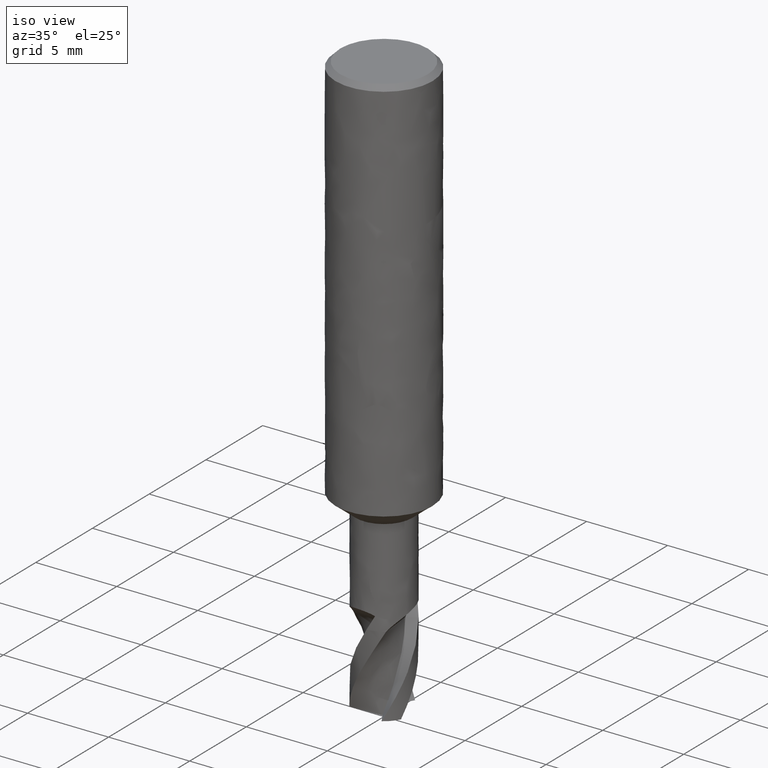
[diagram: clean part render]
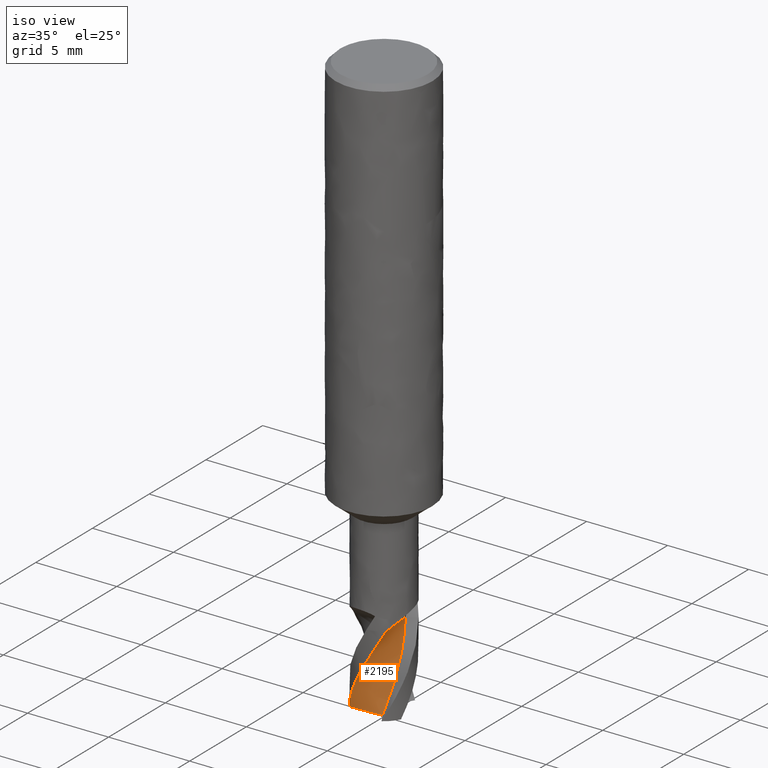
[diagram: same view with one face highlighted and labeled with its STEP entity id]
A machine part, iso view. The second image highlights one B-rep face of the part: STEP entity #2195.
In plain terms, the highlighted face is a freeform B-spline surface patch.
Its self-contained STEP definition (entity closure, byte-faithful):
#1143 = VERTEX_POINT('', #1144);
#1144 = CARTESIAN_POINT('', (1.09454893589704, -1.3654532679395, -31.));
#1151 = EDGE_CURVE('', #1143, #1152, #1154, .T.);
#1152 = VERTEX_POINT('', #1153);
#1153 = CARTESIAN_POINT('', (0.890026275204839, 0.612047449909204, -31.));
#1154 = LINE('', #1155, #1156);
#1155 = CARTESIAN_POINT('', (1.09454893589705, -1.3654532679395, -31.));
#1156 = VECTOR('', #1157, 1.98804894502846);
#1157 = DIRECTION('', (-0.204522660692207, 1.9775007178487, -3.5527136788005E-15));
#1307 = VERTEX_POINT('', #1308);
#1308 = CARTESIAN_POINT('', (-1.44307479140081, -0.989967245126578, -36.));
#1315 = EDGE_CURVE('', #1143, #1307, #1316, .T.);
#1316 = B_SPLINE_CURVE_WITH_KNOTS('', 3, (#1317, #1318, #1319, #1320, #1321, #1322, #1323, #1324, #1325, #1326, #1327, #1328, #1329, #1330, #1331, #1332, #1333, #1334, #1335, #1336, #1337, #1338, #1339, #1340, #1341, #1342, #1343, #1344, #1345, #1346, #1347, #1348, #1349, #1350, #1351, #1352, #1353, #1354, #1355, #1356, #1357, #1358, #1359, #1360, #1361, #1362, #1363, #1364, #1365, #1366, #1367, #1368, #1369, #1370, #1371, #1372, #1373, #1374, #1375, #1376, #1377, #1378, #1379, #1380, #1381, #1382, #1383, #1384, #1385, #1386, #1387, #1388, #1389, #1390, #1391, #1392, #1393, #1394, #1395, #1396, #1397, #1398, #1399, #1400, #1401, #1402, #1403, #1404, #1405, #1406, #1407), .UNSPECIFIED., .F., .U., (4, 3, 3, 3, 3, 3, 3, 3, 3, 3, 3, 3, 3, 3, 3, 3, 3, 3, 3, 3, 3, 3, 3, 3, 3, 3, 3, 3, 3, 3, 4), (2.58669447304961, 2.60025520898882, 2.65863125368822, 2.71700368674347, 2.7753718059981, 2.83373747663387, 2.89210495877536, 2.97967060598826, 3.01860026813964, 3.15000640398405, 3.28133752872721, 3.36888335223861, 3.45642626909757, 3.58773194731643, 3.71904333403454, 3.80658979744614, 4.00345205164809, 4.13473040835345, 4.26601090045895, 4.56108827645327, 4.85607721165188, 4.91443848247962, 4.95336126665688, 5.39805475087892, 5.84247587833638, 6.28664720260929, 6.73058148883443, 7.17429020582691, 7.61778243309247, 8.06106526066834, 8.35734910080718), .UNSPECIFIED.);
#1317 = CARTESIAN_POINT('', (1.09454893589704, -1.3654532679395, -31.));
#1318 = CARTESIAN_POINT('', (1.09227065475572, -1.36727954076586, -31.0034506202769));
#1319 = CARTESIAN_POINT('', (1.09000031634178, -1.36909007757032, -31.0069158628127));
#1320 = CARTESIAN_POINT('', (1.08773937927493, -1.37088403695374, -31.0103947262767));
#1321 = CARTESIAN_POINT('', (1.07800653263088, -1.37860664534497, -31.0253704834911));
#1322 = CARTESIAN_POINT('', (1.06843803320348, -1.38602994332886, -31.0406133943669));
#1323 = CARTESIAN_POINT('', (1.05905783546013, -1.39316061570523, -31.0560990551556));
#1324 = CARTESIAN_POINT('', (1.04967821805647, -1.40029084691689, -31.0715837578681));
#1325 = CARTESIAN_POINT('', (1.04048280708181, -1.40713171247634, -31.0873184478951));
#1326 = CARTESIAN_POINT('', (1.03148257290153, -1.41369858944595, -31.103270417975));
#1327 = CARTESIAN_POINT('', (1.02248300385055, -1.42026498111459, -31.1192212091831));
#1328 = CARTESIAN_POINT('', (1.01367511896774, -1.42656009560266, -31.1353958175477));
#1329 = CARTESIAN_POINT('', (1.0050520931351, -1.43260960840183, -31.1517538218024));
#1330 = CARTESIAN_POINT('', (0.996429429049661, -1.43865886741605, -31.1681111398174));
#1331 = CARTESIAN_POINT('', (0.987988902585472, -1.444464586212, -31.1846571451722));
#1332 = CARTESIAN_POINT('', (0.979702311070539, -1.45006323368439, -31.2013452628234));
#1333 = CARTESIAN_POINT('', (0.971415462363189, -1.455662054923, -31.2180338984267));
#1334 = CARTESIAN_POINT('', (0.963280656413383, -1.46105520262264, -31.2348682994926));
#1335 = CARTESIAN_POINT('', (0.9552471399277, -1.46628881931903, -31.2517975962355));
#1336 = CARTESIAN_POINT('', (0.943194879925135, -1.47414053771545, -31.2771957249839));
#1337 = CARTESIAN_POINT('', (0.93137167932687, -1.48163448600611, -31.3028129347863));
#1338 = CARTESIAN_POINT('', (0.919522360363681, -1.48895219157342, -31.3284647616649));
#1339 = CARTESIAN_POINT('', (0.914254427119959, -1.49220547427646, -31.3398689708009));
#1340 = CARTESIAN_POINT('', (0.908976478966648, -1.49542638228476, -31.3512778346246));
#1341 = CARTESIAN_POINT('', (0.903676464566376, -1.49862231645896, -31.362683394985));
#1342 = CARTESIAN_POINT('', (0.885786393762492, -1.5094101151974, -31.4011825889487));
#1343 = CARTESIAN_POINT('', (0.867681542597677, -1.51989123397708, -31.4396698447961));
#1344 = CARTESIAN_POINT('', (0.849328457413137, -1.53007881216237, -31.4781145672657));
#1345 = CARTESIAN_POINT('', (0.830985848795174, -1.54026057493079, -31.5165373441774));
#1346 = CARTESIAN_POINT('', (0.812393695085638, -1.55015054322674, -31.5549206630058));
#1347 = CARTESIAN_POINT('', (0.79348173751915, -1.55977137177972, -31.5932117440632));
#1348 = CARTESIAN_POINT('', (0.780874955215193, -1.56618465241049, -31.6187367232398));
#1349 = CARTESIAN_POINT('', (0.768124601331259, -1.57247887529096, -31.6442215999037));
#1350 = CARTESIAN_POINT('', (0.755201794746008, -1.57866090380816, -31.6696453935595));
#1351 = CARTESIAN_POINT('', (0.742279417217288, -1.58484272707276, -31.6950683431072));
#1352 = CARTESIAN_POINT('', (0.72917728018786, -1.59091535508311, -31.7204273361164));
#1353 = CARTESIAN_POINT('', (0.715917142420076, -1.5968602459793, -31.7457325956919));
#1354 = CARTESIAN_POINT('', (0.696028253114738, -1.60577699172035, -31.78368797107));
#1355 = CARTESIAN_POINT('', (0.675782918950553, -1.61440576511425, -31.8215266406852));
#1356 = CARTESIAN_POINT('', (0.655288287024169, -1.62268211948272, -31.8593043962177));
#1357 = CARTESIAN_POINT('', (0.634792764096021, -1.63095883366475, -31.8970837941338));
#1358 = CARTESIAN_POINT('', (0.614045734050474, -1.63888363935455, -31.9348061108281));
#1359 = CARTESIAN_POINT('', (0.5931831468224, -1.64640024123111, -31.9725434466512));
#1360 = CARTESIAN_POINT('', (0.579273875318363, -1.6514116262116, -31.9977032623569));
#1361 = CARTESIAN_POINT('', (0.565318237534287, -1.6562403336597, -32.0228745617872));
#1362 = CARTESIAN_POINT('', (0.551345485162726, -1.66087873006751, -32.048070704537));
#1363 = CARTESIAN_POINT('', (0.519925512018423, -1.67130890779418, -32.1047282697387));
#1364 = CARTESIAN_POINT('', (0.488383517379589, -1.68079154918881, -32.1615001606941));
#1365 = CARTESIAN_POINT('', (0.456678100872778, -1.6893623389265, -32.2183102930807));
#1366 = CARTESIAN_POINT('', (0.435535221073163, -1.69507780325963, -32.2561943499009));
#1367 = CARTESIAN_POINT('', (0.414316227389619, -1.70038839336612, -32.2940992220657));
#1368 = CARTESIAN_POINT('', (0.392997533131255, -1.70530142172953, -32.3319973102409));
#1369 = CARTESIAN_POINT('', (0.371678492098725, -1.71021453000924, -32.369896014874));
#1370 = CARTESIAN_POINT('', (0.350250544356122, -1.71473158881787, -32.4077870333358));
#1371 = CARTESIAN_POINT('', (0.328734678366866, -1.71884656419328, -32.4456695681609));
#1372 = CARTESIAN_POINT('', (0.280373759112745, -1.72809573835909, -32.5308176262838));
#1373 = CARTESIAN_POINT('', (0.231557738500744, -1.73531060086532, -32.6159534564631));
#1374 = CARTESIAN_POINT('', (0.182613936133268, -1.74044596305946, -32.701115947038));
#1375 = CARTESIAN_POINT('', (0.133684803236172, -1.74557978607929, -32.7862529126521));
#1376 = CARTESIAN_POINT('', (0.0846035694430096, -1.7486427142325, -32.8714523607445));
#1377 = CARTESIAN_POINT('', (0.035531042561044, -1.74963926139493, -32.9566557239294));
#1378 = CARTESIAN_POINT('', (0.0258224240678401, -1.74983642051481, -32.9735125479012));
#1379 = CARTESIAN_POINT('', (0.0161135827121785, -1.74995274137009, -32.9903703826095));
#1380 = CARTESIAN_POINT('', (0.00640568315654513, -1.74998827631024, -33.0072287361076));
#1381 = CARTESIAN_POINT('', (-6.87899633730481E-5, -1.7500119755681, -33.0184720494468));
#1382 = CARTESIAN_POINT('', (-0.00654292301390642, -1.74999974207506, -33.0297156917467));
#1383 = CARTESIAN_POINT('', (-0.0130163136216235, -1.74995159235326, -33.0409595502624));
#1384 = CARTESIAN_POINT('', (-0.0869749135759842, -1.74940148094662, -33.1694208287957));
#1385 = CARTESIAN_POINT('', (-0.160871491072149, -1.74415220309357, -33.2979823323286));
#1386 = CARTESIAN_POINT('', (-0.234009407525652, -1.73428359768219, -33.4265355626118));
#1387 = CARTESIAN_POINT('', (-0.30710252996485, -1.7244210363923, -33.5550100592434));
#1388 = CARTESIAN_POINT('', (-0.37951460342265, -1.7099364786232, -33.6836008269014));
#1389 = CARTESIAN_POINT('', (-0.450614000862319, -1.69098995331931, -33.8121756137396));
#1390 = CARTESIAN_POINT('', (-0.521673434279572, -1.67205407760444, -33.9406781304059));
#1391 = CARTESIAN_POINT('', (-0.591487200503761, -1.64864349960494, -34.0692927251661));
#1392 = CARTESIAN_POINT('', (-0.659444514283103, -1.62099751159029, -34.1978944751808));
#1393 = CARTESIAN_POINT('', (-0.727365561720811, -1.59336627723188, -34.3264275951285));
#1394 = CARTESIAN_POINT('', (-0.793497906425212, -1.5614776088658, -34.4550723438835));
#1395 = CARTESIAN_POINT('', (-0.857271719576819, -1.52564255276744, -34.5837046346632));
#1396 = CARTESIAN_POINT('', (-0.921013128360163, -1.48982570496332, -34.7122715655731));
#1397 = CARTESIAN_POINT('', (-0.982459664387595, -1.45003217229429, -34.840949107706));
#1398 = CARTESIAN_POINT('', (-1.04108866570243, -1.40663939591714, -34.9696152519204));
#1399 = CARTESIAN_POINT('', (-1.09968906136675, -1.36326779129061, -35.0982186186924));
#1400 = CARTESIAN_POINT('', (-1.15553081628832, -1.316259164135, -35.2269321674161));
#1401 = CARTESIAN_POINT('', (-1.20814780160809, -1.26604853361534, -35.3556344356311));
#1402 = CARTESIAN_POINT('', (-1.26073994324465, -1.21586161059223, -35.4842759356671));
#1403 = CARTESIAN_POINT('', (-1.31016024133736, -1.16242800617026, -35.6130263438464));
#1404 = CARTESIAN_POINT('', (-1.35600088387717, -1.10623758882273, -35.7417686004128));
#1405 = CARTESIAN_POINT('', (-1.38664010732825, -1.0686807253598, -35.8278180654287));
#1406 = CARTESIAN_POINT('', (-1.41569821170134, -1.0298740725833, -35.9139084298977));
#1407 = CARTESIAN_POINT('', (-1.44307479140081, -0.989967245126578, -36.));
#2129 = EDGE_CURVE('', #2130, #1152, #2132, .T.);
#2130 = VERTEX_POINT('', #2131);
#2131 = CARTESIAN_POINT('', (0.544940590071605, -0.909239487355396, -36.));
#2132 = B_SPLINE_CURVE_WITH_KNOTS('', 3, (#2133, #2134, #2135, #2136, #2137, #2138, #2139, #2140, #2141, #2142, #2143, #2144, #2145, #2146, #2147, #2148, #2149, #2150), .UNSPECIFIED., .F., .U., (4, 1, 1, 1, 1, 1, 1, 1, 1, 1, 1, 1, 1, 1, 1, 4), (0.0499999999999987, 0.672222222222222, 1.00833333333333, 1.34444444444444, 1.68055555555556, 2.01666666666667, 2.35277777777778, 2.68888888888889, 3.025, 3.36111111111111, 3.69722222222222, 4.03333333333333, 4.36944444444444, 4.70555555555555, 5.04166666666667, 5.05), .UNSPECIFIED.);
#2133 = CARTESIAN_POINT('', (0.544940590071606, -0.909239487355396, -36.));
#2134 = CARTESIAN_POINT('', (0.605563211542006, -0.870686619623749, -35.7925925925926));
#2135 = CARTESIAN_POINT('', (0.692834054224696, -0.802317325295902, -35.4731481481481));
#2136 = CARTESIAN_POINT('', (0.794933710943784, -0.694080938953839, -35.0416666666667));
#2137 = CARTESIAN_POINT('', (0.865040741189985, -0.602018946536168, -34.7055555555556));
#2138 = CARTESIAN_POINT('', (0.925006362385828, -0.503203935060161, -34.3694444444444));
#2139 = CARTESIAN_POINT('', (0.974214248807352, -0.398695321785037, -34.0333333333333));
#2140 = CARTESIAN_POINT('', (1.01215396649719, -0.28960342888543, -33.6972222222222));
#2141 = CARTESIAN_POINT('', (1.03841221324569, -0.17708625172186, -33.3611111111111));
#2142 = CARTESIAN_POINT('', (1.05272586097909, -0.0623197163890223, -33.025));
#2143 = CARTESIAN_POINT('', (1.05479878751788, 0.0534368228904306, -32.6888888888889));
#2144 = CARTESIAN_POINT('', (1.04499757171392, 0.169130957763196, -32.3527777777778));
#2145 = CARTESIAN_POINT('', (1.02176368045749, 0.282880597901976, -32.0166666666667));
#2146 = CARTESIAN_POINT('', (0.99127645414979, 0.395890538748353, -31.6805555555556));
#2147 = CARTESIAN_POINT('', (0.931391913981727, 0.49788411220861, -31.3444444444444));
#2148 = CARTESIAN_POINT('', (0.889420815383369, 0.560811912665505, -31.1175925925926));
#2149 = CARTESIAN_POINT('', (0.889999669429893, 0.610826740383209, -31.0027777777778));
#2150 = CARTESIAN_POINT('', (0.890026275204839, 0.612047449909204, -31.));
#2195 = ADVANCED_FACE('', (#2196), #2207, .T.);
#2196 = FACE_OUTER_BOUND('', #2197, .T.);
#2197 = EDGE_LOOP('', (#2198, #2199, #2200, #2206));
#2198 = ORIENTED_EDGE('', *, *, #1151, .F.);
#2199 = ORIENTED_EDGE('', *, *, #1315, .T.);
#2200 = ORIENTED_EDGE('', *, *, #2201, .T.);
#2201 = EDGE_CURVE('', #1307, #2130, #2202, .T.);
#2202 = LINE('', #2203, #2204);
#2203 = CARTESIAN_POINT('', (-1.44307479140081, -0.989967245126578, -36.));
#2204 = VECTOR('', #2205, 1.989653770847);
#2205 = DIRECTION('', (1.98801538147241, 0.0807277577711816, 0.));
#2206 = ORIENTED_EDGE('', *, *, #2129, .T.);
#2207 = B_SPLINE_SURFACE_WITH_KNOTS('', 3, 1, ((#2208, #2209), (#2210, #2211), (#2212, #2213), (#2214, #2215), (#2216, #2217), (#2218, #2219), (#2220, #2221), (#2222, #2223), (#2224, #2225), (#2226, #2227), (#2228, #2229), (#2230, #2231), (#2232, #2233), (#2234, #2235), (#2236, #2237), (#2238, #2239), (#2240, #2241), (#2242, #2243)), .UNSPECIFIED., .F., .F., .U., (4, 1, 1, 1, 1, 1, 1, 1, 1, 1, 1, 1, 1, 1, 1, 4), (2, 2), (0.0500000000000003, 0.672222222222222, 1.00833333333333, 1.34444444444444, 1.68055555555556, 2.01666666666667, 2.35277777777778, 2.68888888888889, 3.025, 3.36111111111111, 3.69722222222222, 4.03333333333333, 4.36944444444444, 4.70555555555555, 5.04166666666667, 5.05000000000001), (0., 0.907194838237106), .UNSPECIFIED.);
#2208 = CARTESIAN_POINT('', (0.544940590071606, -0.909239487355396, -36.));
#2209 = CARTESIAN_POINT('', (-1.46166521141255, -0.990722150213107, -36.));
#2210 = CARTESIAN_POINT('', (0.605563211542006, -0.870686619623749, -35.7925925925926));
#2211 = CARTESIAN_POINT('', (-1.39191835444395, -1.08797121543049, -35.7925925925926));
#2212 = CARTESIAN_POINT('', (0.692834054224696, -0.802317325295902, -35.4731481481481));
#2213 = CARTESIAN_POINT('', (-1.27010800644002, -1.2267742316964, -35.4731481481481));
#2214 = CARTESIAN_POINT('', (0.794933710943784, -0.694080938953839, -35.0416666666667));
#2215 = CARTESIAN_POINT('', (-1.08061489778418, -1.38654051921574, -35.0416666666667));
#2216 = CARTESIAN_POINT('', (0.865040741189985, -0.602018946536168, -34.7055555555556));
#2217 = CARTESIAN_POINT('', (-0.920991968916385, -1.4945980403836, -34.7055555555556));
#2218 = CARTESIAN_POINT('', (0.925006362385828, -0.503203935060161, -34.3694444444444));
#2219 = CARTESIAN_POINT('', (-0.751078657763574, -1.58516175096331, -34.3694444444444));
#2220 = CARTESIAN_POINT('', (0.974214248807352, -0.398695321785037, -34.0333333333333));
#2221 = CARTESIAN_POINT('', (-0.572694175294277, -1.65730490323333, -34.0333333333333));
#2222 = CARTESIAN_POINT('', (1.01215396649719, -0.28960342888543, -33.6972222222222));
#2223 = CARTESIAN_POINT('', (-0.387732569748097, -1.71028159189515, -33.6972222222222));
#2224 = CARTESIAN_POINT('', (1.03841221324569, -0.17708625172186, -33.3611111111111));
#2225 = CARTESIAN_POINT('', (-0.19815816462869, -1.74351188457161, -33.3611111111111));
#2226 = CARTESIAN_POINT('', (1.05272586097909, -0.0623197163890223, -33.025));
#2227 = CARTESIAN_POINT('', (-0.00595116873214631, -1.75666728115189, -33.025));
#2228 = CARTESIAN_POINT('', (1.05479878751788, 0.0534368228904306, -32.6888888888889));
#2229 = CARTESIAN_POINT('', (0.186766390249211, -1.74937214860169, -32.6888888888889));
#2230 = CARTESIAN_POINT('', (1.04499757171392, 0.169130957763196, -32.3527777777778));
#2231 = CARTESIAN_POINT('', (0.378278177110999, -1.72233384632583, -32.3527777777778));
#2232 = CARTESIAN_POINT('', (1.02176368045749, 0.282880597901976, -32.0166666666667));
#2233 = CARTESIAN_POINT('', (0.565309277114152, -1.67313490450229, -32.0166666666667));
#2234 = CARTESIAN_POINT('', (0.99127645414979, 0.395890538748353, -31.6805555555556));
#2235 = CARTESIAN_POINT('', (0.750436969321373, -1.61194093237395, -31.6805555555556));
#2236 = CARTESIAN_POINT('', (0.931391913981727, 0.49788411220861, -31.3444444444444));
#2237 = CARTESIAN_POINT('', (0.914514121074233, -1.50287600178397, -31.3444444444444));
#2238 = CARTESIAN_POINT('', (0.889420815383369, 0.560811912665505, -31.1175925925926));
#2239 = CARTESIAN_POINT('', (1.01527990869898, -1.42723004307664, -31.1175925925926));
#2240 = CARTESIAN_POINT('', (0.889999669429893, 0.61082674038321, -31.0027777777778));
#2241 = CARTESIAN_POINT('', (1.09851781750058, -1.4235511534721, -31.0027777777778));
#2242 = CARTESIAN_POINT('', (0.890026275204839, 0.612047449909206, -31.));
#2243 = CARTESIAN_POINT('', (1.1005505591856, -1.42348211580019, -31.));